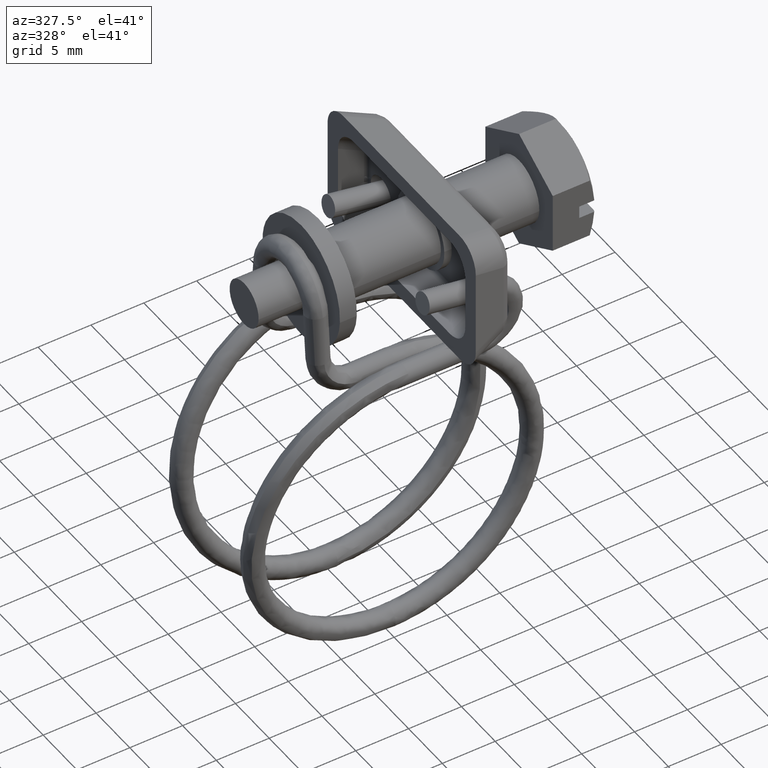
[diagram: clean part render]
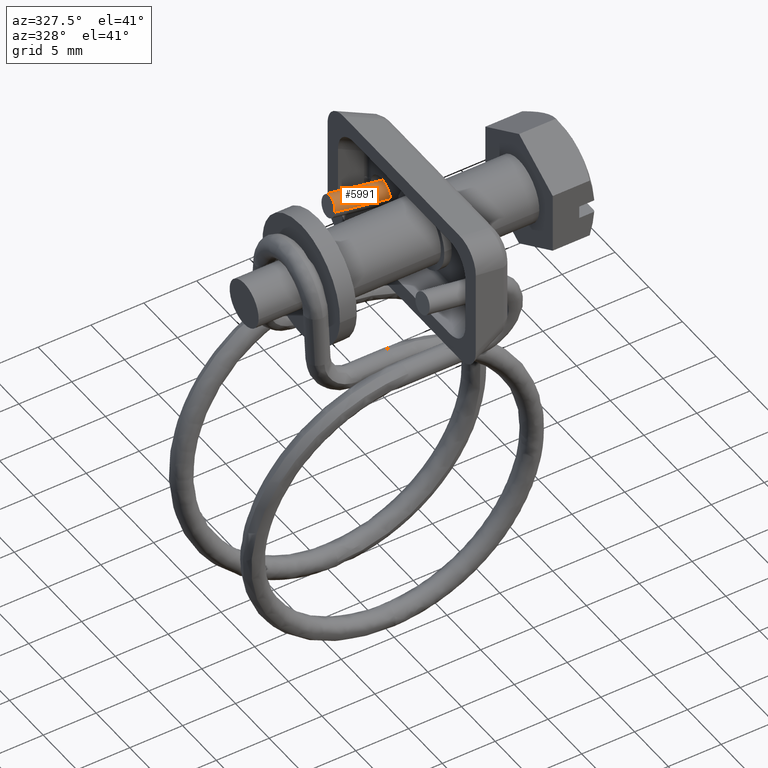
[diagram: same view with one face highlighted and labeled with its STEP entity id]
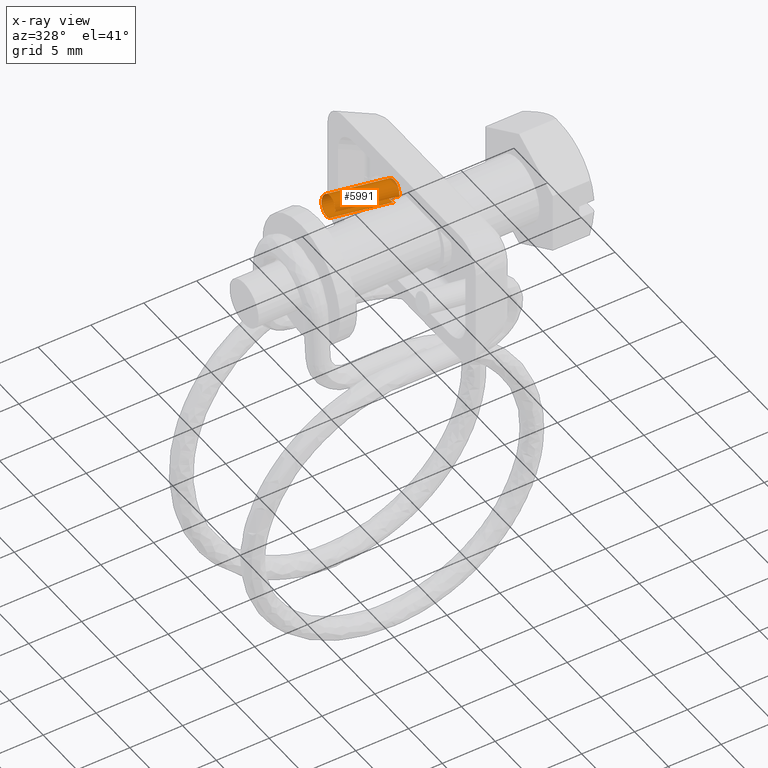
[diagram: x-ray of the same camera — body ghosted, the highlighted face saturated]
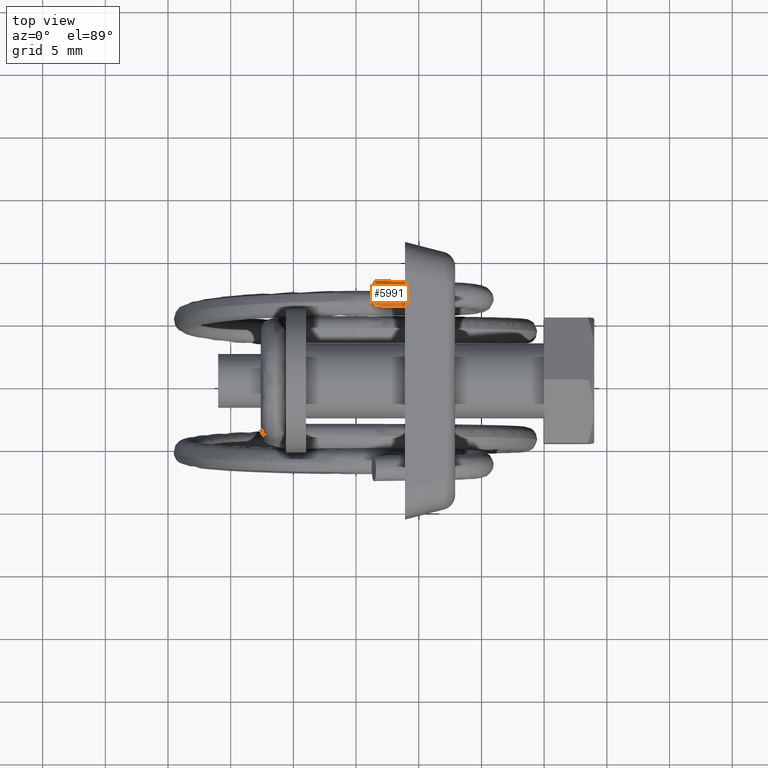
[diagram: same view with one face highlighted and labeled with its STEP entity id]
A machine part, auxiliary view. The second image highlights one B-rep face of the part: STEP entity #5991.
The next image is the same camera in x-ray: the body ghosted, the highlighted face saturated — about 2% of this face is hidden behind the body in this view.
A second angle (top view) of the same face is appended — the face is thin or edge-on in the first view.
In plain terms, the highlighted face is a freeform B-spline surface patch.
Its self-contained STEP definition (entity closure, byte-faithful):
#5858=CARTESIAN_POINT('',(-13.902162821248751,6.607169563155756,-1.517039939394908));
#5859=CARTESIAN_POINT('',(-13.910028752997343,6.745643349396046,-1.574741914890100));
#5860=CARTESIAN_POINT('',(-13.910205245108781,6.895100334695644,-1.589873297171077));
#5861=CARTESIAN_POINT('',(-13.911380127370792,7.890013702403597,-1.690600703608890));
#5862=CARTESIAN_POINT('',(-13.736985122140039,7.989401457383914,-0.710953595558987));
#5863=CARTESIAN_POINT('',(-13.562590116909290,8.088789212364231,0.268693512490916));
#5864=CARTESIAN_POINT('',(-13.561415234647271,7.093875844656277,0.369420918928729));
#5865=CARTESIAN_POINT('',(-13.560240352385259,6.098962476948325,0.470148325366542));
#5866=CARTESIAN_POINT('',(-13.734635357616011,5.999574721968007,-0.509498782683361));
#5867=CARTESIAN_POINT('',(-7.584110521810703,6.501842157668475,-2.631082435382945));
#5868=CARTESIAN_POINT('',(-7.591976453559294,6.640315943908765,-2.688784410878139));
#5869=CARTESIAN_POINT('',(-7.592152945670730,6.789772929208363,-2.703915793159115));
#5870=CARTESIAN_POINT('',(-7.593327827932744,7.784686296916316,-2.804643199596928));
#5871=CARTESIAN_POINT('',(-7.418932822701993,7.884074051896633,-1.824996091547025));
#5872=CARTESIAN_POINT('',(-7.244537817471241,7.983461806876949,-0.845348983497122));
#5873=CARTESIAN_POINT('',(-7.243362935209227,6.988548439168996,-0.744621577059309));
#5874=CARTESIAN_POINT('',(-7.242188052947213,5.993635071461044,-0.643894170621497));
#5875=CARTESIAN_POINT('',(-7.416583058177964,5.894247316480726,-1.623541278671400));
#5883=(BOUNDED_SURFACE()B_SPLINE_SURFACE(2,1,((#5858,#5867),(#5859,#5868),(#5860,#5869),(#5861,#5870),(#5862,#5871),(#5863,#5872),(#5864,#5873),(#5865,#5874),(#5866,#5875)),.UNSPECIFIED.,.F.,.F.,.U.)B_SPLINE_SURFACE_WITH_KNOTS((3,2,2,2,3),(2,2),(1.256637061435917,1.570796326794897,3.141592653589793,4.712388980384690,6.283185307179586),(0.0,6.416382890979025),.UNSPECIFIED.)GEOMETRIC_REPRESENTATION_ITEM()RATIONAL_B_SPLINE_SURFACE(((0.906274169979695,0.906274169979695),(0.941421356237309,0.941421356237309),(1.0,1.0),(0.707106781186548,0.707106781186548),(1.0,1.0),(0.707106781186548,0.707106781186548),(1.0,1.0),(0.707106781186548,0.707106781186548),(1.0,1.0)))REPRESENTATION_ITEM('')SURFACE());
#5884=CARTESIAN_POINT('',(-7.738129009024068,6.504598631490932,-2.603472711524726));
#5885=VERTEX_POINT('',#5884);
#5886=CARTESIAN_POINT('',(-7.745998225249641,6.853265276577523,-2.681066046686504));
#5887=VERTEX_POINT('',#5886);
#5888=CARTESIAN_POINT('',(-7.738129009024068,6.504598631490932,-2.603472711524726));
#5889=CARTESIAN_POINT('',(-7.744390022215666,6.615004791179170,-2.649419076520753));
#5890=CARTESIAN_POINT('',(-7.747159450447156,6.733533609133323,-2.676331627329767));
#5891=CARTESIAN_POINT('',(-7.745998225249641,6.853265276577523,-2.681066046686504));
#5892=B_SPLINE_CURVE_WITH_KNOTS('',3,(#5888,#5889,#5890,#5891),.UNSPECIFIED.,.F.,.U.,(4,4),(0.942811831421918,1.0),.UNSPECIFIED.);
#5893=EDGE_CURVE('',#5885,#5887,#5892,.T.);
#5894=ORIENTED_EDGE('',*,*,#5893,.F.);
#5895=CARTESIAN_POINT('',(-13.751822492883591,6.604663259589556,-1.543548981517546));
#5896=VERTEX_POINT('',#5895);
#5897=CARTESIAN_POINT('',(-13.751822492883591,6.604663259589556,-1.543548981517546));
#5898=CARTESIAN_POINT('',(-7.738129009024068,6.504598631490932,-2.603472711524726));
#5899=QUASI_UNIFORM_CURVE('',1,(#5897,#5898),.UNSPECIFIED.,.F.,.U.);
#5900=EDGE_CURVE('',#5896,#5885,#5899,.T.);
#5901=ORIENTED_EDGE('',*,*,#5900,.F.);
#5902=CARTESIAN_POINT('',(-13.759611359753411,6.953517417433946,-1.620704361034594));
#5903=VERTEX_POINT('',#5902);
#5904=CARTESIAN_POINT('',(-13.751822492883596,6.604663259589556,-1.543548981517546));
#5905=CARTESIAN_POINT('',(-13.761331884430033,6.772068913986810,-1.613306855788677));
#5906=CARTESIAN_POINT('',(-13.759611359753411,6.953517417433946,-1.620704361034594));
#5914=(BOUNDED_CURVE()B_SPLINE_CURVE(2,(#5904,#5905,#5906),.UNSPECIFIED.,.F.,.U.)B_SPLINE_CURVE_WITH_KNOTS((3,3),(0.940284170883560,1.0),.UNSPECIFIED.)CURVE()GEOMETRIC_REPRESENTATION_ITEM()RATIONAL_B_SPLINE_CURVE((0.893499554616982,0.930038554383888,1.0))REPRESENTATION_ITEM(''));
#5915=EDGE_CURVE('',#5896,#5903,#5914,.T.);
#5916=ORIENTED_EDGE('',*,*,#5915,.T.);
#5917=CARTESIAN_POINT('',(-13.411328463277430,7.030446154875154,0.347233898509645));
#5918=VERTEX_POINT('',#5917);
#5919=CARTESIAN_POINT('',(-13.759611359753411,6.953517417433946,-1.620704361034594));
#5920=CARTESIAN_POINT('',(-13.750137490251660,7.952642548447542,-1.661437865348963));
#5921=CARTESIAN_POINT('',(-13.575996042013671,7.991106917168144,-0.677468735576845));
#5922=CARTESIAN_POINT('',(-13.401854593775687,8.029571285888750,0.306500394195275));
#5923=CARTESIAN_POINT('',(-13.411328463277430,7.030446154875154,0.347233898509645));
#5931=(BOUNDED_CURVE()B_SPLINE_CURVE(2,(#5919,#5920,#5921,#5922,#5923),.UNSPECIFIED.,.F.,.U.)B_SPLINE_CURVE_WITH_KNOTS((3,2,3),(0.0,0.250000000000000,0.500000000000000),.UNSPECIFIED.)CURVE()GEOMETRIC_REPRESENTATION_ITEM()RATIONAL_B_SPLINE_CURVE((1.0,0.707106781186548,1.0,0.707106781186548,1.0))REPRESENTATION_ITEM(''));
#5932=EDGE_CURVE('',#5903,#5918,#5931,.T.);
#5933=ORIENTED_EDGE('',*,*,#5932,.T.);
#5934=CARTESIAN_POINT('',(-13.584295029217200,5.997068418467231,-0.536007824621260));
#5935=VERTEX_POINT('',#5934);
#5936=CARTESIAN_POINT('',(-13.411328463277430,7.030446154875154,0.347233898509645));
#5937=CARTESIAN_POINT('',(-13.420240589791089,6.090563082923736,0.385552153128562));
#5938=CARTESIAN_POINT('',(-13.584295029217197,5.997068418467231,-0.536007824621260));
#5946=(BOUNDED_CURVE()B_SPLINE_CURVE(2,(#5936,#5937,#5938),.UNSPECIFIED.,.F.,.U.)B_SPLINE_CURVE_WITH_KNOTS((3,3),(0.500000000000000,0.739332962170318),.UNSPECIFIED.)CURVE()GEOMETRIC_REPRESENTATION_ITEM()RATIONAL_B_SPLINE_CURVE((1.0,0.719603993367110,0.976072041519641))REPRESENTATION_ITEM(''));
#5947=EDGE_CURVE('',#5918,#5935,#5946,.T.);
#5948=ORIENTED_EDGE('',*,*,#5947,.T.);
#5949=CARTESIAN_POINT('',(-7.570681982407927,5.896854979628929,-1.596373666704974));
#5950=VERTEX_POINT('',#5949);
#5951=CARTESIAN_POINT('',(-13.584295029217200,5.997068418467231,-0.536007824621260));
#5952=CARTESIAN_POINT('',(-7.570681982407927,5.896854979628929,-1.596373666704974));
#5953=QUASI_UNIFORM_CURVE('',1,(#5951,#5952),.UNSPECIFIED.,.F.,.U.);
#5954=EDGE_CURVE('',#5935,#5950,#5953,.T.);
#5955=ORIENTED_EDGE('',*,*,#5954,.T.);
#5956=CARTESIAN_POINT('',(-7.397715328773641,6.930194014018733,-0.713127787142264));
#5957=VERTEX_POINT('',#5956);
#5958=CARTESIAN_POINT('',(-7.397715328773641,6.930194014018733,-0.713127787142264));
#5959=CARTESIAN_POINT('',(-7.400195573424480,6.668618278871962,-0.702463222599326));
#5960=CARTESIAN_POINT('',(-7.421428304905369,6.404505772718481,-0.797909512403554));
#5961=CARTESIAN_POINT('',(-7.486765426141361,6.035278712754591,-1.133546278638754));
#5962=CARTESIAN_POINT('',(-7.528605757329424,5.921404116267456,-1.360068413819324));
#5963=CARTESIAN_POINT('',(-7.570681982407927,5.896854979628929,-1.596373666704974));
#5964=B_SPLINE_CURVE_WITH_KNOTS('',3,(#5958,#5959,#5960,#5961,#5962,#5963),.UNSPECIFIED.,.F.,.U.,(4,2,4),(0.500000000000000,0.625000000000000,0.740274466526489),.UNSPECIFIED.);
#5965=EDGE_CURVE('',#5957,#5950,#5964,.T.);
#5966=ORIENTED_EDGE('',*,*,#5965,.F.);
#5967=CARTESIAN_POINT('',(-7.684157024127157,7.593709700378318,-2.400352470667923));
#5968=VERTEX_POINT('',#5967);
#5969=CARTESIAN_POINT('',(-7.684157024127157,7.593709700378318,-2.400352470667923));
#5970=CARTESIAN_POINT('',(-7.650598173105083,7.772340897883661,-2.226919396085962));
#5971=CARTESIAN_POINT('',(-7.606149414007868,7.881187628940525,-1.985128762592737));
#5972=CARTESIAN_POINT('',(-7.516792782970729,7.900924724494857,-1.480227905441152));
#5973=CARTESIAN_POINT('',(-7.472504423042942,7.803253854571043,-1.219821686966010));
#5974=CARTESIAN_POINT('',(-7.411537858373347,7.447578578725231,-0.840435532826943));
#5975=CARTESIAN_POINT('',(-7.395235075537996,7.191764361652838,-0.723791793634681));
#5976=CARTESIAN_POINT('',(-7.397715328773641,6.930194014018733,-0.713127787142264));
#5977=B_SPLINE_CURVE_WITH_KNOTS('',3,(#5969,#5970,#5971,#5972,#5973,#5974,#5975,#5976),.UNSPECIFIED.,.F.,.U.,(4,2,2,4),(0.130000035807160,0.250000000000000,0.375000000000000,0.500000000000000),.UNSPECIFIED.);
#5978=EDGE_CURVE('',#5968,#5957,#5977,.T.);
#5979=ORIENTED_EDGE('',*,*,#5978,.F.);
#5980=CARTESIAN_POINT('',(-7.745998225249637,6.853265276577520,-2.681066046686499));
#5981=CARTESIAN_POINT('',(-7.743517972013991,7.114835624211626,-2.691730053178916));
#5982=CARTESIAN_POINT('',(-7.722285228676381,7.378940689519449,-2.596282992635378));
#5983=CARTESIAN_POINT('',(-7.686934693236725,7.578702587566315,-2.414686572379458));
#5984=CARTESIAN_POINT('',(-7.685555304370926,7.586266761577213,-2.407578821821760));
#5985=CARTESIAN_POINT('',(-7.684157024127157,7.593709700378318,-2.400352470667923));
#5986=B_SPLINE_CURVE_WITH_KNOTS('',3,(#5980,#5981,#5982,#5983,#5984,#5985),.UNSPECIFIED.,.F.,.U.,(4,2,4),(0.0,0.125000000000000,0.130000035807160),.UNSPECIFIED.);
#5987=EDGE_CURVE('',#5887,#5968,#5986,.T.);
#5988=ORIENTED_EDGE('',*,*,#5987,.F.);
#5989=EDGE_LOOP('',(#5894,#5901,#5916,#5933,#5948,#5955,#5966,#5979,#5988));
#5990=FACE_OUTER_BOUND('',#5989,.T.);
#5991=ADVANCED_FACE('',(#5990),#5883,.T.);